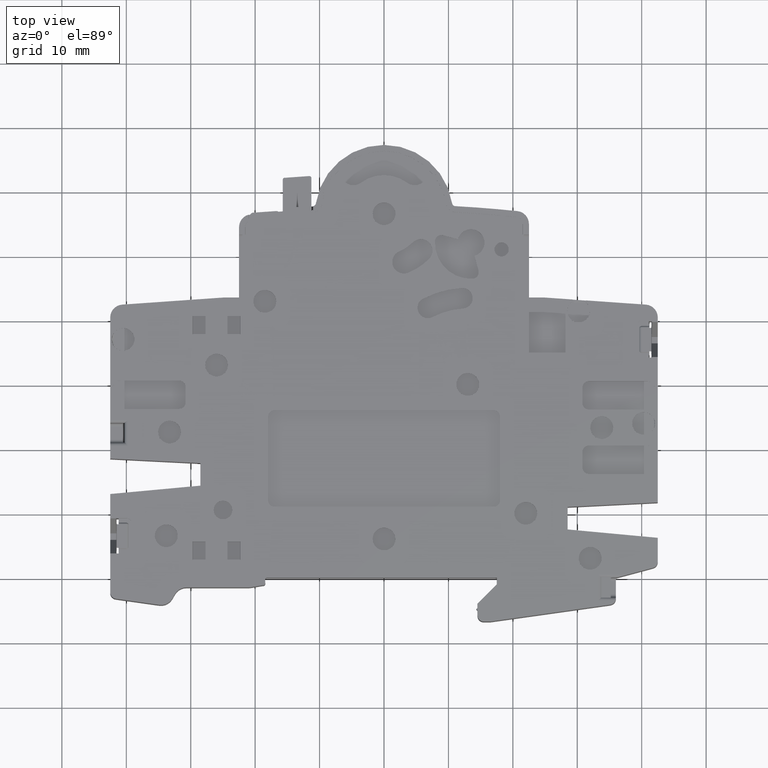
[diagram: clean part render]
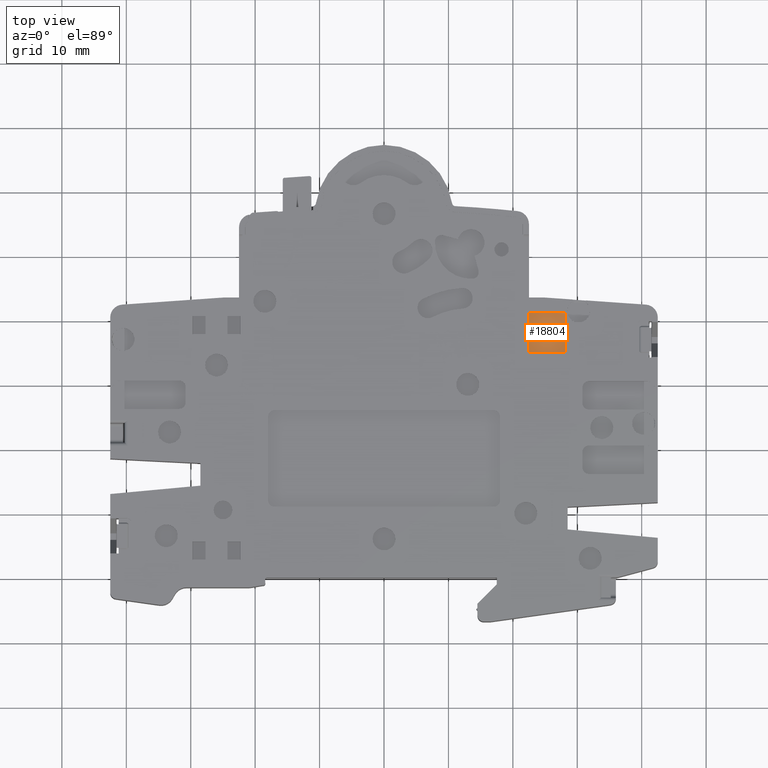
[diagram: same view with one face highlighted and labeled with its STEP entity id]
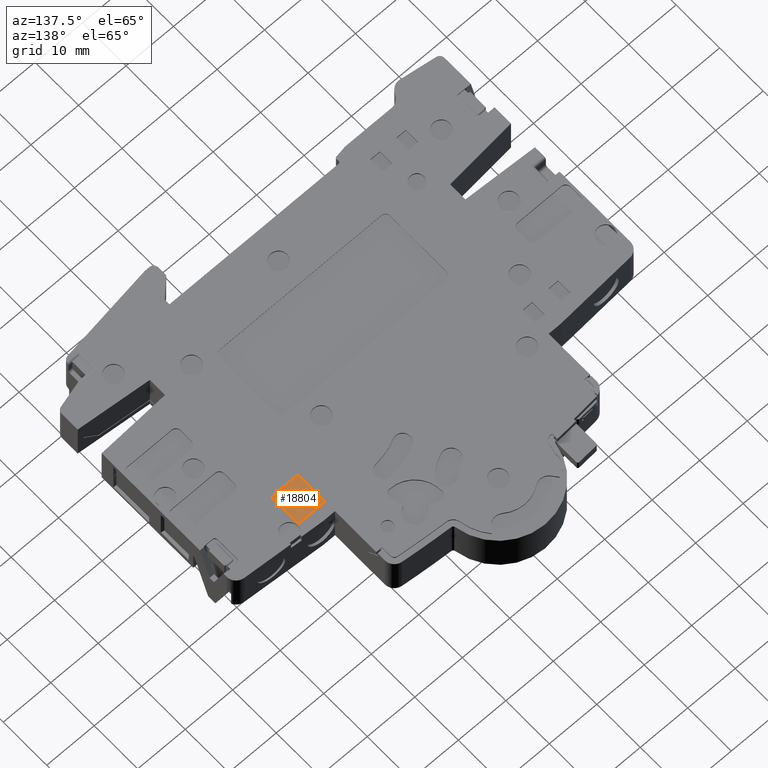
[diagram: same view with one face highlighted and labeled with its STEP entity id]
A machine part, top view. The second image highlights one B-rep face of the part: STEP entity #18804.
A second angle (auxiliary view) of the same face is appended — the face is thin or edge-on in the first view.
In plain terms, the highlighted planar face has unit normal (0, 0, 1).
Its self-contained STEP definition (entity closure, byte-faithful):
#5796=DIRECTION('',(0.E0,1.E0,0.E0));
#5797=VECTOR('',#5796,6.273305689442E0);
#5798=CARTESIAN_POINT('',(2.246334715528E1,3.496334715528E1,4.2E0));
#5799=LINE('',#5798,#5797);
#5800=DIRECTION('',(1.E0,0.E0,0.E0));
#5801=VECTOR('',#5800,5.673305689442E0);
#5802=CARTESIAN_POINT('',(2.246334715528E1,4.123665284472E1,4.2E0));
#5803=LINE('',#5802,#5801);
#5804=DIRECTION('',(0.E0,-1.E0,0.E0));
#5805=VECTOR('',#5804,6.273305689442E0);
#5806=CARTESIAN_POINT('',(2.813665284472E1,4.123665284472E1,4.2E0));
#5807=LINE('',#5806,#5805);
#5808=DIRECTION('',(-1.E0,0.E0,0.E0));
#5809=VECTOR('',#5808,5.673305689442E0);
#5810=CARTESIAN_POINT('',(2.813665284472E1,3.496334715528E1,4.2E0));
#5811=LINE('',#5810,#5809);
#9754=CARTESIAN_POINT('',(2.246334715528E1,3.496334715528E1,4.2E0));
#9755=CARTESIAN_POINT('',(2.246334715528E1,4.123665284472E1,4.2E0));
#9756=VERTEX_POINT('',#9754);
#9757=VERTEX_POINT('',#9755);
#9758=CARTESIAN_POINT('',(2.813665284472E1,3.496334715528E1,4.2E0));
#9759=VERTEX_POINT('',#9758);
#9760=CARTESIAN_POINT('',(2.813665284472E1,4.123665284472E1,4.2E0));
#9761=VERTEX_POINT('',#9760);
#18790=CARTESIAN_POINT('',(0.E0,0.E0,4.2E0));
#18791=DIRECTION('',(0.E0,0.E0,1.E0));
#18792=DIRECTION('',(1.E0,0.E0,0.E0));
#18793=AXIS2_PLACEMENT_3D('',#18790,#18791,#18792);
#18794=PLANE('',#18793);
#18795=ORIENTED_EDGE('',*,*,#18773,.T.);
#18797=ORIENTED_EDGE('',*,*,#18796,.T.);
#18799=ORIENTED_EDGE('',*,*,#18798,.T.);
#18801=ORIENTED_EDGE('',*,*,#18800,.T.);
#18802=EDGE_LOOP('',(#18795,#18797,#18799,#18801));
#18803=FACE_OUTER_BOUND('',#18802,.F.);
#18804=ADVANCED_FACE('',(#18803),#18794,.T.);
#18773=EDGE_CURVE('',#9756,#9757,#5799,.T.);
#18796=EDGE_CURVE('',#9757,#9761,#5803,.T.);
#18798=EDGE_CURVE('',#9761,#9759,#5807,.T.);
#18800=EDGE_CURVE('',#9759,#9756,#5811,.T.);